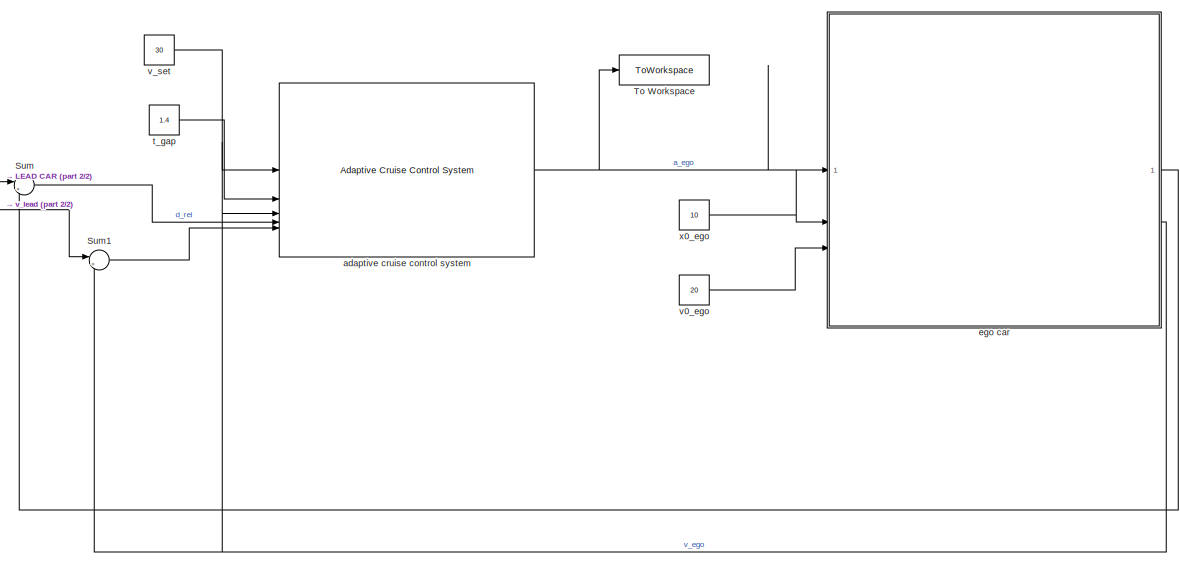
[diagram: root canvas - part 1/2, center side, full height]
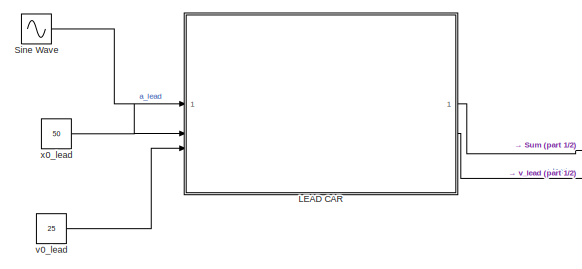
[diagram: root canvas - part 2/2, top left region]
MODEL slx_fa9ee882fdbe
KIND model
CONFIG AbsTol = auto
CONFIG EnableMultiTasking = off
CONFIG FixedStep = auto
CONFIG MaxStep = auto
CONFIG MinStep = auto
CONFIG RelTol = 1e-3
CONFIG SampleTimeConstraint = Unconstrained
CONFIG SolverName = VariableStepAuto
CONFIG StartTime = 0.0
CONFIG StopTime = 50
WORKSPACE source: mxarray member
WORKSPACE Ts = 0.1
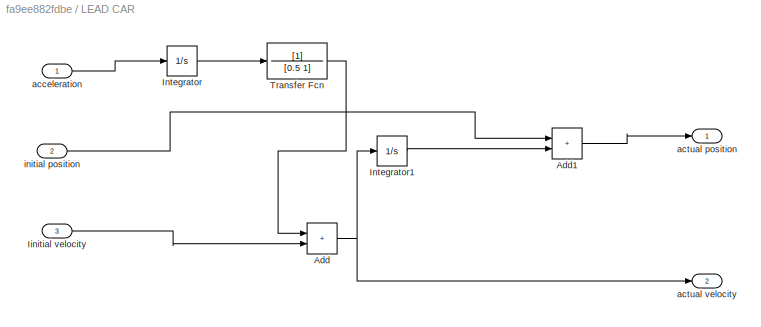
BLOCK [SubSystem] LEAD CAR
BLOCK [Sum] LEAD CAR/Add
  IconShape = rectangular
BLOCK [Sum] LEAD CAR/Add1
  IconShape = rectangular
BLOCK [Inport] LEAD CAR/Iinitial velocity
  Port = 3
BLOCK [Integrator] LEAD CAR/Integrator
BLOCK [Integrator] LEAD CAR/Integrator1
BLOCK [TransferFcn] LEAD CAR/Transfer Fcn
  Denominator = [0.5 1]
BLOCK [Inport] LEAD CAR/acceleration
BLOCK [Outport] LEAD CAR/actual position
BLOCK [Outport] LEAD CAR/actual velocity
  Port = 2
BLOCK [Inport] LEAD CAR/initial position
  Port = 2
BLOCK [Sin] Sine Wave
  Amplitude = 0.6
  Frequency = 0.2
  SampleTime = Ts
BLOCK [Sum] Sum
  Inputs = |+-
BLOCK [Sum] Sum1
  Inputs = |+-
BLOCK [ToWorkspace] To Workspace
  FixptAsFi = on
  MaxDataPoints = inf
  SampleTime = -1
  SaveFormat = Timeseries
  VariableName = simout
BLOCK [Reference] adaptive cruise control system  REF=mpcadaslib/Adaptive Cruise Control System
  LibrarySourceBlock = mpclib/Automated Driving/Adaptive Cruise Control System
  SourceBlock = mpcadaslib/Adaptive Cruise Control System
  SourceType = Adaptive cruise control (ACC) system
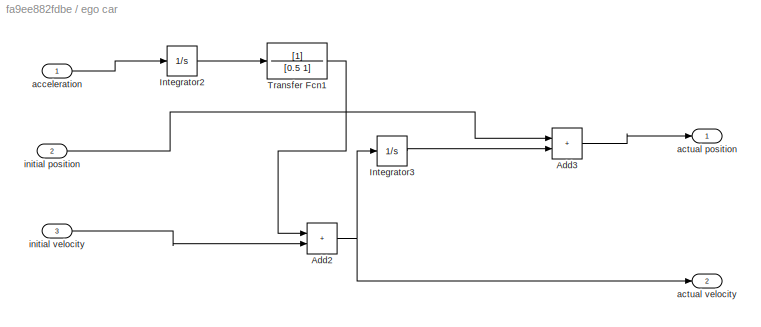
BLOCK [SubSystem] ego car
BLOCK [Sum] ego car/Add2
  IconShape = rectangular
BLOCK [Sum] ego car/Add3
  IconShape = rectangular
BLOCK [Integrator] ego car/Integrator2
BLOCK [Integrator] ego car/Integrator3
BLOCK [TransferFcn] ego car/Transfer Fcn1
  Denominator = [0.5 1]
BLOCK [Inport] ego car/acceleration
BLOCK [Outport] ego car/actual position
BLOCK [Outport] ego car/actual velocity
  Port = 2
BLOCK [Inport] ego car/initial position
  Port = 2
BLOCK [Inport] ego car/initial velocity
  Port = 3
BLOCK [Constant] t_gap
  SampleTime = Ts
  Value = 1.4
BLOCK [Constant] v0_ego
  SampleTime = Ts
  Value = 20
BLOCK [Constant] v0_lead
  SampleTime = Ts
  Value = 25
BLOCK [Constant] v_set
  SampleTime = Ts
  Value = 30
BLOCK [Constant] x0_ego
  SampleTime = Ts
  Value = 10
BLOCK [Constant] x0_lead
  SampleTime = Ts
  Value = 50
LINE LEAD CAR/Add1:1 -> LEAD CAR/actual position:1
NET LEAD CAR/Add:1 -> LEAD CAR/Integrator1:1, LEAD CAR/actual velocity:1
LINE LEAD CAR/Iinitial velocity:1 -> LEAD CAR/Add:2
LINE LEAD CAR/Integrator1:1 -> LEAD CAR/Add1:2
LINE LEAD CAR/Integrator:1 -> LEAD CAR/Transfer Fcn:1
LINE LEAD CAR/Transfer Fcn:1 -> LEAD CAR/Add:1
LINE LEAD CAR/acceleration:1 -> LEAD CAR/Integrator:1
LINE LEAD CAR/initial position:1 -> LEAD CAR/Add1:1
LINE LEAD CAR:1 -> Sum:1
LINE LEAD CAR:2 -> Sum1:1
LINE Sine Wave:1 -> LEAD CAR:1
LINE Sum1:1 -> adaptive cruise control system:5
LINE Sum:1 -> adaptive cruise control system:4
NET adaptive cruise control system:1 -> To Workspace:1, ego car:1
NET ego car/Add2:1 -> ego car/Integrator3:1, ego car/actual velocity:1
LINE ego car/Add3:1 -> ego car/actual position:1
LINE ego car/Integrator2:1 -> ego car/Transfer Fcn1:1
LINE ego car/Integrator3:1 -> ego car/Add3:2
LINE ego car/Transfer Fcn1:1 -> ego car/Add2:1
LINE ego car/acceleration:1 -> ego car/Integrator2:1
LINE ego car/initial position:1 -> ego car/Add3:1
LINE ego car/initial velocity:1 -> ego car/Add2:2
LINE ego car:1 -> Sum:2
NET ego car:2 -> Sum1:2, adaptive cruise control system:3
LINE t_gap:1 -> adaptive cruise control system:2
LINE v0_ego:1 -> ego car:3
LINE v0_lead:1 -> LEAD CAR:3
LINE v_set:1 -> adaptive cruise control system:1
LINE x0_ego:1 -> ego car:2
LINE x0_lead:1 -> LEAD CAR:2
note: NET lines group one-source signal fan-out (src -> all destinations, sorted); 1:1 wires keep LINE
